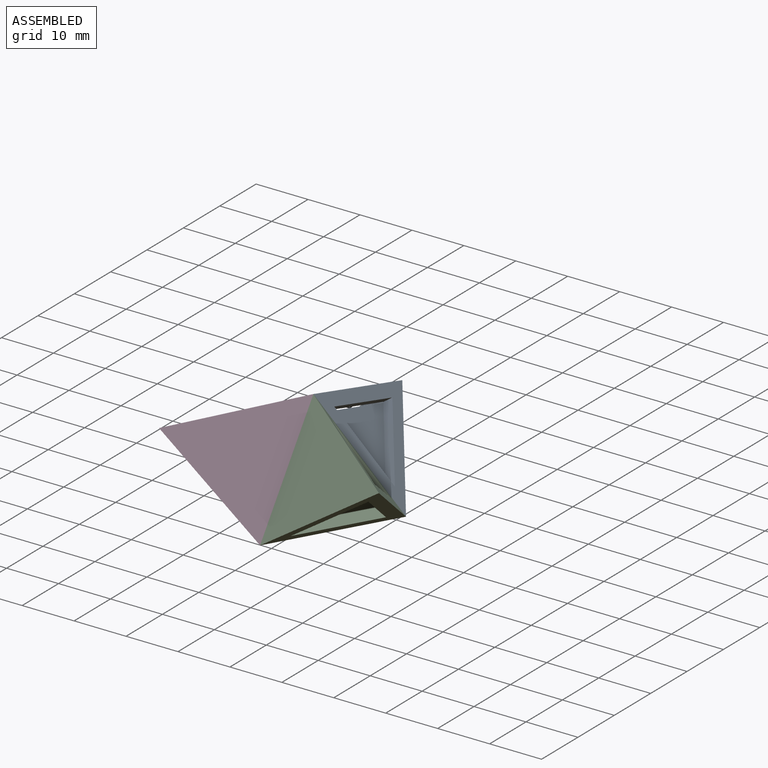
[diagram: assembled view]
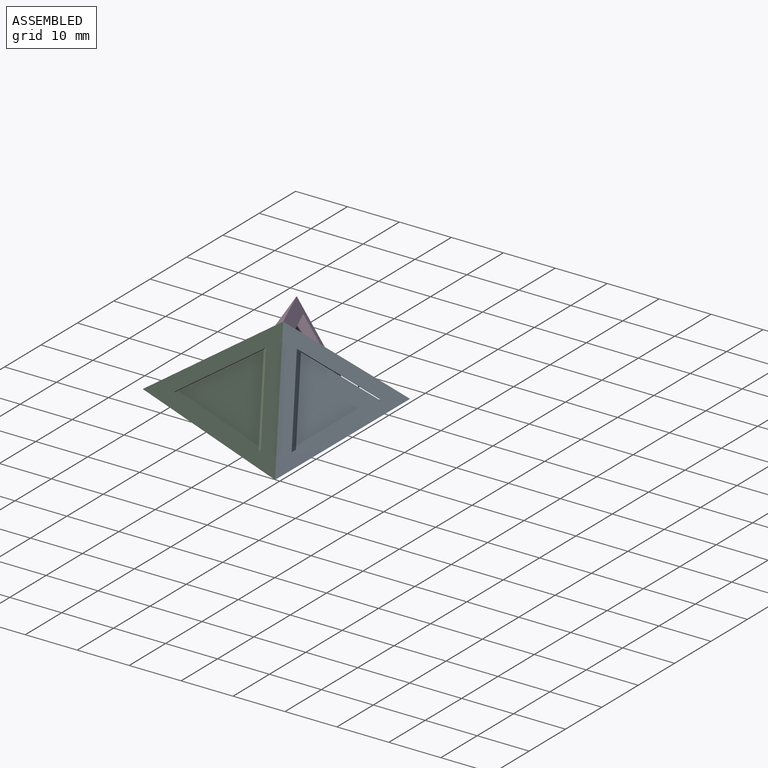
[diagram: assembled view, second angle]
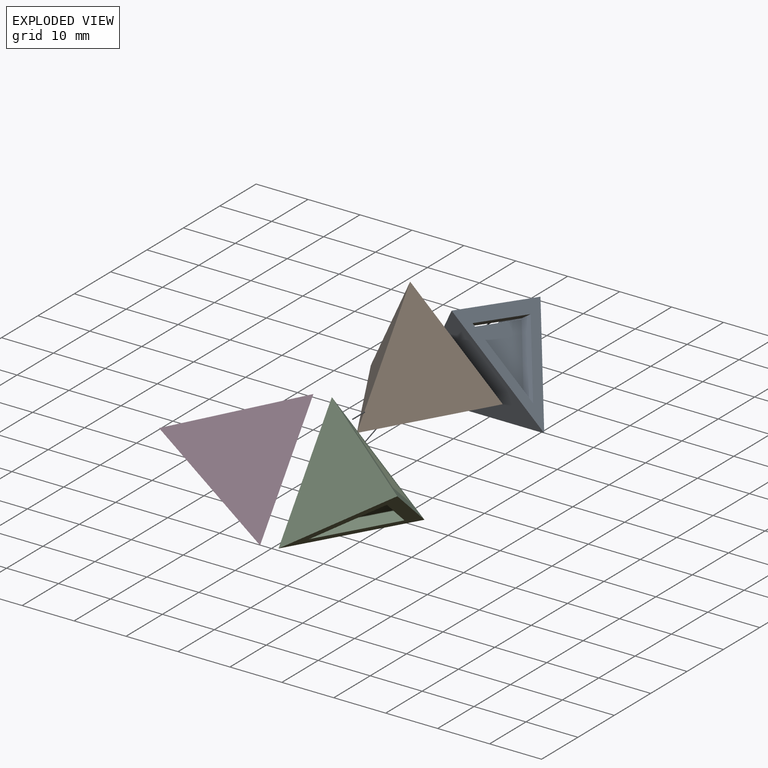
[diagram: exploded view]
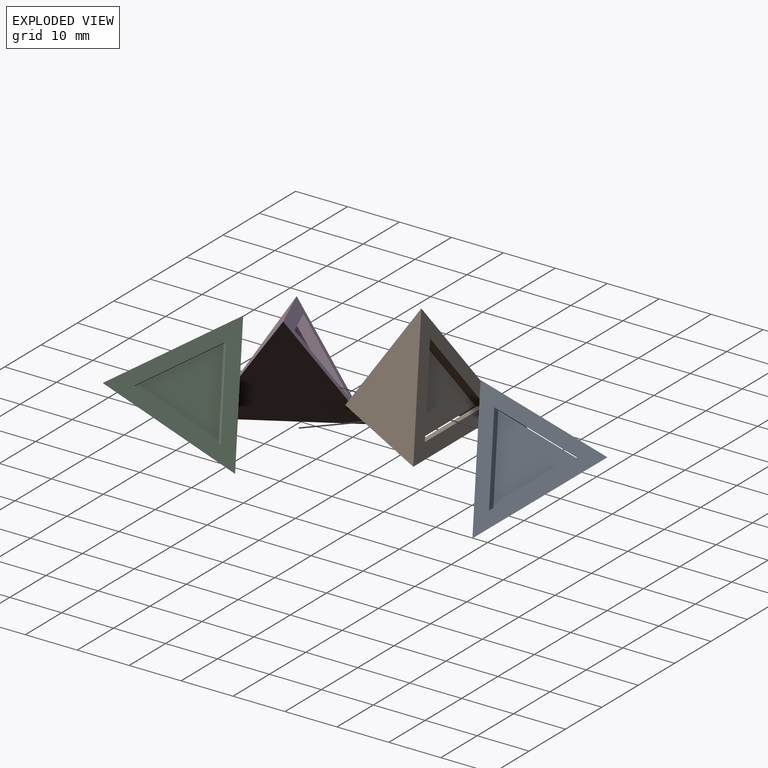
[diagram: exploded view, second angle]
ASSEMBLY  parts=4 mates=3
PART A: 24 faces, bbox 25.4x22x20.7 mm
  f0: plane 25.4x20.74mm, normal (0,0.94,0.33), area 160mm2, adj f4,f5,f6,f9,f10,f11
  f1: plane 14.38x8.3mm, normal (0.87,0.5,0), area 31.6mm2, adj f2,f3,f4,f7,f21,f23
  f2: plane 14.38x8.3mm, normal (-0.87,0.5,0), area 31.6mm2, adj f1,f3,f4,f7,f18,f20
  f3: plane 16.6x1.8mm, normal (0,-1,0), area 29.8mm2, adj f1,f2,f4,f11
  f4: plane 25.4x22mm, normal (0,0,-1), area 160mm2, adj f0,f1,f2,f3,f5,f6
  f5: plane 22x20.74mm, normal (-0.82,-0.47,0.33), area 279.4mm2, adj f0,f4,f6
  f6: plane 22x20.74mm, normal (0.82,-0.47,0.33), area 279.4mm2, adj f0,f4,f5
  f7: plane 16.42x14.22mm, normal (0,0,-1), area 116.8mm2, adj f1,f2,f8
  f8: plane 16.42x13.41mm, normal (0,0.94,0.33), area 116.8mm2, adj f7,f9,f10
  f9: plane 14.15x8.3mm, normal (-0.87,0.17,-0.47), area 31.6mm2, adj f0,f8,f10,f11,f12,f13
  f10: plane 14.15x8.3mm, normal (0.87,0.17,-0.47), area 31.6mm2, adj f0,f8,f9,f11,f15,f16
  f11: plane 16.6x1.69mm, normal (0,-0.33,0.94), area 29.8mm2, adj f0,f3,f9,f10
  f12: plane 0.15x0.09mm, normal (0,0,-1), area 0mm2, adj f9,f13,f14
  f13: plane 0.11x0.06mm, normal (0,-1,0), area 0mm2, adj f9,f12,f14
  f14: plane 0.15x0.11mm, normal (-0.87,0.5,0), area 0mm2, adj f12,f13,f19
  f15: plane 0.15x0.09mm, normal (0,0,-1), area 0mm2, adj f10,f16,f17
  f16: plane 0.11x0.06mm, normal (0,-1,0), area 0mm2, adj f10,f15,f17
  f17: plane 0.15x0.11mm, normal (0.87,0.5,0), area 0mm2, adj f15,f16,f22
  f18: plane 0.15x0.09mm, normal (0,0.94,0.33), area 0mm2, adj f2,f19,f20
  f19: plane 0.15x0.15mm, normal (-0.87,0.17,-0.47), area 0mm2, adj f14,f18,f20
  f20: plane 0.1x0.06mm, normal (0,-0.33,0.94), area 0mm2, adj f2,f18,f19
  f21: plane 0.1x0.06mm, normal (0,-0.33,0.94), area 0mm2, adj f1,f22,f23
  f22: plane 0.15x0.15mm, normal (0.87,0.17,-0.47), area 0mm2, adj f17,f21,f23
  f23: plane 0.15x0.09mm, normal (0,0.94,0.33), area 0mm2, adj f1,f21,f22
PART B: same geometry as A
PART C: same geometry as A
PART D: same geometry as A
PLACE A rot(axis=(0.63,-0.73,-0.26),131.8deg) t=(-10.85,-43.47,-4.4)mm
PLACE B t=(-9.29,-54.62,-0.18)mm fixed
PLACE C rot(axis=(-0.58,-0.67,0.47),180deg) t=(-48.16,-8.92,16.85)mm
PLACE D rot(axis=(0,0.58,0.82),70.5deg) t=(-13.83,-32.18,-16.05)mm
MATE fastened A.f6 <-> B.f0  axis (0,-0.94,-0.33) through (-30.99,-22.17,6.73)mm
MATE fastened D.f6 <-> B.f5  axis (0.82,0.47,-0.33) through (-35.23,-29.5,6.73)mm
MATE fastened C.f6 <-> B.f6  axis (-0.82,0.47,-0.33) through (-26.76,-29.5,6.73)mm
